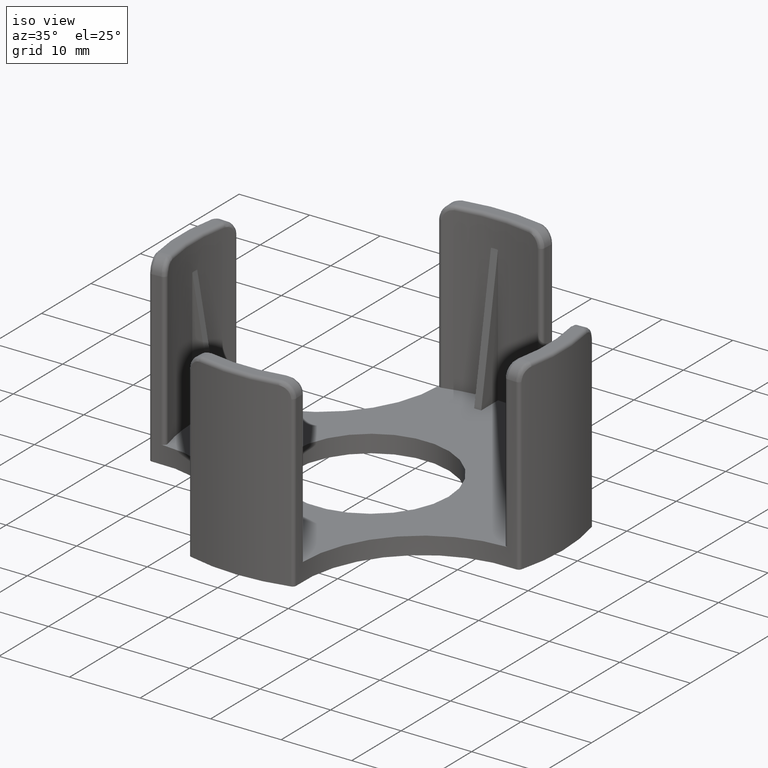
[diagram: clean part render]
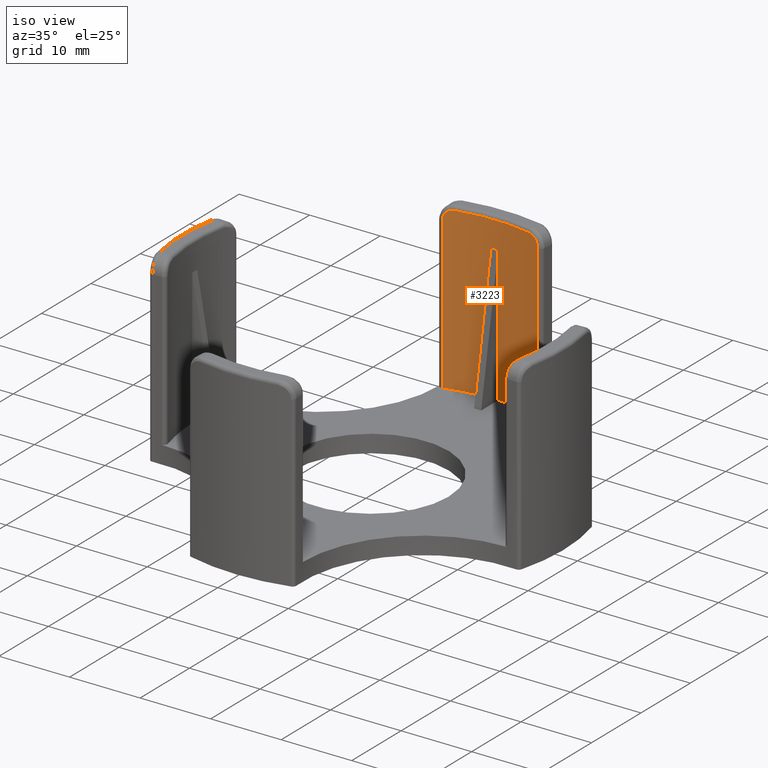
[diagram: same view with one face highlighted and labeled with its STEP entity id]
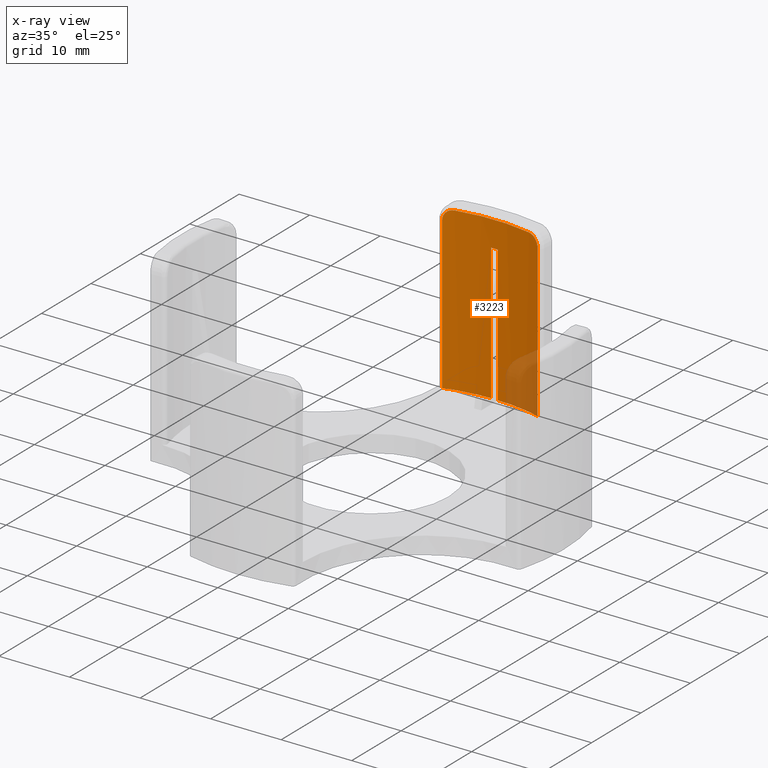
[diagram: x-ray of the same camera — body ghosted, the highlighted face saturated]
A machine part, iso view. The second image highlights one B-rep face of the part: STEP entity #3223.
The next image is the same camera in x-ray: the body ghosted, the highlighted face saturated — about 10% of this face is hidden behind the body in this view.
In plain terms, the highlighted cylindrical surface (partial cylindrical patch) has radius 25 mm, axis along (0, 0, 1).
Its self-contained STEP definition (entity closure, byte-faithful):
#2746=CARTESIAN_POINT('',(-5.494313290047959,23.288785609355898,24.0));
#2747=VERTEX_POINT('',#2746);
#2765=CARTESIAN_POINT('',(-5.494313290047959,23.288785609355898,2.500000000000000));
#2766=VERTEX_POINT('',#2765);
#2774=CARTESIAN_POINT('',(-5.494313290047959,23.288785609355898,2.500000000000000));
#2775=DIRECTION('',(0.0,0.0,1.0));
#2776=VECTOR('',#2775,21.500000000000000);
#2777=LINE('',#2774,#2776);
#2778=EDGE_CURVE('',#2766,#2747,#2777,.T.);
#2901=CARTESIAN_POINT('',(-4.029973062196730,23.653434958964148,25.500000000000004));
#2902=VERTEX_POINT('',#2901);
#2929=CARTESIAN_POINT('',(-5.494313290047966,23.288785609355898,23.999999999999996));
#2930=CARTESIAN_POINT('',(-5.494313290047966,23.288785609355898,24.056518994501062));
#2931=CARTESIAN_POINT('',(-5.488142848620984,23.290524933623274,24.169988344264997));
#2932=CARTESIAN_POINT('',(-5.449848773796365,23.301265181659158,24.395911076902067));
#2933=CARTESIAN_POINT('',(-5.366698964219779,23.324447083380921,24.635773190682830));
#2934=CARTESIAN_POINT('',(-5.224049806437487,23.363340549938805,24.879984710673931));
#2935=CARTESIAN_POINT('',(-5.099114781669207,23.396591149827685,25.029254609688014));
#2936=CARTESIAN_POINT('',(-4.999581081306241,23.422537152983637,25.124537787581172));
#2937=CARTESIAN_POINT('',(-4.831100643738974,23.466014394675476,25.268624795864199));
#2938=CARTESIAN_POINT('',(-4.589383922415514,23.526119263296629,25.403477501400570));
#2939=CARTESIAN_POINT('',(-4.274045767571156,23.599556533793191,25.485957575110866));
#2940=CARTESIAN_POINT('',(-4.111195584506392,23.635794116680358,25.500000000000000));
#2941=CARTESIAN_POINT('',(-4.029973062196738,23.653434958964144,25.500000000000000));
#2942=B_SPLINE_CURVE_WITH_KNOTS('',3,(#2929,#2930,#2931,#2932,#2933,#2934,#2935,#2936,#2937,#2938,#2939,#2940,#2941),.UNSPECIFIED.,.F.,.U.,(4,1,1,1,1,1,1,1,1,1,4),(3.418921E-019,0.016955698350319,0.033911396700639,0.067822793401277,0.093256340926756,0.118689888452235,0.127167737627394,0.135645586802554,0.186512681853512,0.211946229378991,0.237379776904470),.UNSPECIFIED.);
#2943=EDGE_CURVE('',#2747,#2902,#2942,.T.);
#2953=CARTESIAN_POINT('',(6.582187379500165,23.653434958964148,25.500000000000004));
#2954=VERTEX_POINT('',#2953);
#2972=CARTESIAN_POINT('',(1.276107158651716,-0.776986909884554,25.500000000000004));
#2973=DIRECTION('',(0.0,0.0,-1.0));
#2974=DIRECTION('',(0.0,1.0,0.0));
#2975=AXIS2_PLACEMENT_3D('',#2972,#2973,#2974);
#2976=CIRCLE('',#2975,24.999999999999996);
#2977=EDGE_CURVE('',#2902,#2954,#2976,.T.);
#3100=CARTESIAN_POINT('',(8.046527607351401,23.288785609355898,24.0));
#3101=VERTEX_POINT('',#3100);
#3126=CARTESIAN_POINT('',(6.582187379500166,23.653434958964144,25.500000000000000));
#3127=CARTESIAN_POINT('',(6.636255970643307,23.641691719998647,25.500000000000000));
#3128=CARTESIAN_POINT('',(6.744673706886787,23.617770824215437,25.493946102062942));
#3129=CARTESIAN_POINT('',(6.960671571518504,23.568580851912682,25.456378664671544));
#3130=CARTESIAN_POINT('',(7.216963902813014,23.507519997369034,25.365286762234280));
#3131=CARTESIAN_POINT('',(7.450442837330284,23.448852472733357,25.216616269782357));
#3132=CARTESIAN_POINT('',(7.613888056113920,23.406423685040352,25.068336531067803));
#3133=CARTESIAN_POINT('',(7.723583431816552,23.377389975451067,24.944150733574844));
#3134=CARTESIAN_POINT('',(7.820385939348117,23.351322123217098,24.806230920766946));
#3135=CARTESIAN_POINT('',(7.928062937213415,23.321894123061185,24.608963064823946));
#3136=CARTESIAN_POINT('',(8.020836544198158,23.296033349616067,24.341978094067748));
#3137=CARTESIAN_POINT('',(8.046527607351401,23.288785609355902,24.112871491253955));
#3138=CARTESIAN_POINT('',(8.046527607351401,23.288785609355902,24.0));
#3139=B_SPLINE_CURVE_WITH_KNOTS('',3,(#3126,#3127,#3128,#3129,#3130,#3131,#3132,#3133,#3134,#3135,#3136,#3137,#3138),.UNSPECIFIED.,.F.,.U.,(4,1,1,1,1,1,1,1,1,1,4),(0.0,0.016930723688094,0.033861447376187,0.067722894752374,0.101584342128562,0.118515065816655,0.135445789504749,0.152376513192843,0.169307236880936,0.203168684257123,0.237030131633311),.UNSPECIFIED.);
#3140=EDGE_CURVE('',#2954,#3101,#3139,.T.);
#3150=CARTESIAN_POINT('',(8.046527607351390,23.288785609355898,2.500000000000000));
#3151=VERTEX_POINT('',#3150);
#3161=CARTESIAN_POINT('',(8.046527607351401,23.288785609355898,24.0));
#3162=DIRECTION('',(0.0,0.0,-1.0));
#3163=VECTOR('',#3162,21.500000000000000);
#3164=LINE('',#3161,#3163);
#3165=EDGE_CURVE('',#3101,#3151,#3164,.T.);
#3170=CARTESIAN_POINT('',(1.276107158651716,-0.776986909884554,2.500000000000000));
#3171=DIRECTION('',(0.0,0.0,1.0));
#3172=DIRECTION('',(-0.296540397752827,-0.955020309993769,0.0));
#3173=AXIS2_PLACEMENT_3D('',#3170,#3171,#3172);
#3174=CYLINDRICAL_SURFACE('',#3173,24.999999999999996);
#3175=ORIENTED_EDGE('',*,*,#3165,.F.);
#3176=ORIENTED_EDGE('',*,*,#3140,.F.);
#3177=ORIENTED_EDGE('',*,*,#2977,.F.);
#3178=ORIENTED_EDGE('',*,*,#2943,.F.);
#3179=ORIENTED_EDGE('',*,*,#2778,.F.);
#3180=CARTESIAN_POINT('',(0.776107158651717,24.218012590015412,2.500000000000000));
#3181=VERTEX_POINT('',#3180);
#3182=CARTESIAN_POINT('',(1.276107158651716,-0.776986909884554,2.500000000000000));
#3183=DIRECTION('',(0.0,0.0,1.000000000000000));
#3184=DIRECTION('',(-0.296540397752827,-0.955020309993769,0.0));
#3185=AXIS2_PLACEMENT_3D('',#3182,#3183,#3184);
#3186=CIRCLE('',#3185,24.999999999999993);
#3187=EDGE_CURVE('',#3181,#2766,#3186,.T.);
#3188=ORIENTED_EDGE('',*,*,#3187,.F.);
#3189=CARTESIAN_POINT('',(0.776107158651717,24.218012590015412,21.777787781018652));
#3190=VERTEX_POINT('',#3189);
#3191=CARTESIAN_POINT('',(0.776107158651717,24.218012590015412,2.500000000000000));
#3192=DIRECTION('',(0.0,0.0,1.0));
#3193=VECTOR('',#3192,19.277787781018652);
#3194=LINE('',#3191,#3193);
#3195=EDGE_CURVE('',#3181,#3190,#3194,.T.);
#3196=ORIENTED_EDGE('',*,*,#3195,.T.);
#3197=CARTESIAN_POINT('',(1.776107158651717,24.218012590015412,21.777787781018727));
#3198=VERTEX_POINT('',#3197);
#3199=CARTESIAN_POINT('',(1.276107158651716,-0.776986909884554,-119.975898464117390));
#3200=DIRECTION('',(0.0,0.984807753012208,-0.173648177666931));
#3201=DIRECTION('',(-7.711528E-018,-0.173648177666931,-0.984807753012208));
#3202=AXIS2_PLACEMENT_3D('',#3199,#3200,#3201);
#3203=ELLIPSE('',#3202,143.969262078590420,24.999999999999996);
#3204=EDGE_CURVE('',#3190,#3198,#3203,.T.);
#3205=ORIENTED_EDGE('',*,*,#3204,.T.);
#3206=CARTESIAN_POINT('',(1.776107158651717,24.218012590015412,2.500000000000000));
#3207=VERTEX_POINT('',#3206);
#3208=CARTESIAN_POINT('',(1.776107158651717,24.218012590015412,21.777787781018727));
#3209=DIRECTION('',(0.0,0.0,-1.0));
#3210=VECTOR('',#3209,19.277787781018727);
#3211=LINE('',#3208,#3210);
#3212=EDGE_CURVE('',#3198,#3207,#3211,.T.);
#3213=ORIENTED_EDGE('',*,*,#3212,.T.);
#3214=CARTESIAN_POINT('',(1.276107158651716,-0.776986909884554,2.500000000000000));
#3215=DIRECTION('',(0.0,0.0,1.000000000000000));
#3216=DIRECTION('',(-0.296540397752827,-0.955020309993769,0.0));
#3217=AXIS2_PLACEMENT_3D('',#3214,#3215,#3216);
#3218=CIRCLE('',#3217,24.999999999999993);
#3219=EDGE_CURVE('',#3151,#3207,#3218,.T.);
#3220=ORIENTED_EDGE('',*,*,#3219,.F.);
#3221=EDGE_LOOP('',(#3175,#3176,#3177,#3178,#3179,#3188,#3196,#3205,#3213,#3220));
#3222=FACE_OUTER_BOUND('',#3221,.T.);
#3223=ADVANCED_FACE('',(#3222),#3174,.F.);